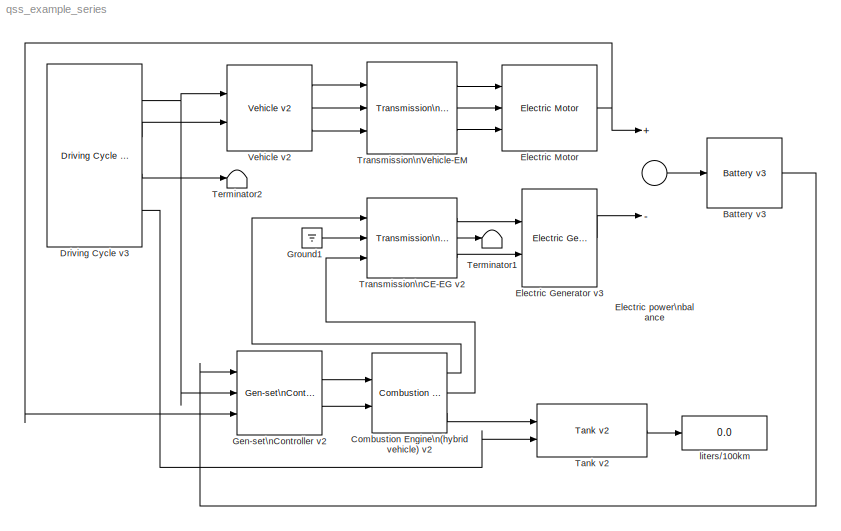
MODEL qss_example_series
KIND model
CONFIG InitFcn = \n
BLOCK [Reference] Battery v3  REF=qss_tb_library_aalto/Energy Buffer/Battery v3  (lib defined in mdl_0a709b6458aa)
  Ports = [1, 1]
  SID = 785
  SourceBlock = qss_tb_library_aalto/Energy Buffer/Battery v3
  SourceType = Battery
  Tag = battery
  cell_parallel_BT = 1
  cell_series_BT = 70
  init_file_BT = 'init_Saft_BT'
  init_soc_BT = 0.7
BLOCK [Reference] Combustion Engine\n(hybrid vehicle) v2  REF=qss_tb_library_aalto/Energy Converter/Combustion Engine\n(hybrid vehicle) v2  (lib defined in mdl_0a709b6458aa)
  ENABLE_FUEL_CUTOFF = on
  P_CE_cutoff = 0
  P_CE_idle = 0
  P_aux = 0
  Ports = [2, 3]
  SID = 790
  SourceBlock = qss_tb_library_aalto/Energy Converter/Combustion Engine\n(hybrid vehicle) v2
  SourceType = Combustion Engine (based on consumption map)
  T_CE_cutoff = 0
  Tag = combustion engine
  V_d = 1.5
  engine_type = Otto
  theta_CE = 0.16
  w_CE_idle = 105
BLOCK [Reference] Driving Cycle v3  REF=qss_tb_library_aalto/Driving Cycle/Driving Cycle v3  (lib defined in mdl_0a709b6458aa)
  Ports = [0, 4]
  SID = 791
  SourceBlock = qss_tb_library_aalto/Driving Cycle/Driving Cycle v3
  SourceType = Driving Cycle
  Tag = cycle
  autostop = on
  cyclenr = Europe: NEDC
  stepsize = 1
BLOCK [Reference] Electric Generator v3  REF=qss_tb_library_aalto/Energy Converter/Electric Generator v3  (lib defined in mdl_0a709b6458aa)
  Ports = [2, 1]
  SID = 787
  SourceBlock = qss_tb_library_aalto/Energy Converter/Electric Generator v3
  SourceType = Electric Generator
  init_file_name = 'init_EG_UQM'
BLOCK [Reference] Electric Motor  REF=qss_tb_library_aalto/Energy Converter/Electric Motor  (lib defined in mdl_0a709b6458aa)
  P_aux = 300
  Ports = [3, 1]
  SID = 443
  SourceBlock = qss_tb_library_aalto/Energy Converter/Electric Motor
  SourceType = Electric Motor
  scale_EM = 3.5
  theta_EM = 0.1
BLOCK [Sum] Electric power\nbalance
  InputSameDT = off
  Inputs = +-
  OutDataTypeStr = Inherit: Inherit via internal rule
  Ports = [2, 1]
  SID = 8
  SaturateOnIntegerOverflow = off
BLOCK [Reference] Gen-set\nController v2  REF=qss_tb_library_aalto/Controller/Gen-set\nController v2  (lib defined in mdl_0a709b6458aa)
  Ports = [3, 2]
  SID = 789
  SourceBlock = qss_tb_library_aalto/Controller/Gen-set\nController v2
  SourceType = Engine-Generator Controller
BLOCK [Ground] Ground1
  SID = 17
BLOCK [Reference] Tank v2  REF=qss_tb_library_aalto/Energy Source/Tank v2  (lib defined in mdl_0a709b6458aa)
  Ports = [2, 1]
  SID = 449
  SourceBlock = qss_tb_library_aalto/Energy Source/Tank v2
  SourceType = Tank
  Tag = tank
  flag_cold_start = off
BLOCK [Terminator] Terminator1
  SID = 12
BLOCK [Terminator] Terminator2
  SID = 13
BLOCK [Reference] Transmission\nCE-EG v2  REF=qss_tb_library_aalto/Gear System/Transmission\nCE-EG v2  (lib defined in mdl_0a709b6458aa)
  P_GT0 = 200
  Ports = [3, 3]
  SID = 788
  SourceBlock = qss_tb_library_aalto/Gear System/Transmission\nCE-EG v2
  SourceType = Transmission
  Tag = simple transmission
  e_GT = 0.98
  gear_ratio = 1.6
  w_wheel_min = 0
BLOCK [Reference] Transmission\nVehicle-EM  REF=qss_tb_library_aalto/Gear System/Transmission\nVehicle-EM  (lib defined in mdl_0a709b6458aa)
  P_GT0 = 300
  Ports = [3, 3]
  SID = 442
  SourceBlock = qss_tb_library_aalto/Gear System/Transmission\nVehicle-EM
  SourceType = Transmission
  Tag = simple transmission
  e_GT = 0.98
  gear_ratio = 3.5
  w_wheel_min = 1
BLOCK [Reference] Vehicle v2  REF=qss_tb_library_aalto/Vehicle/Vehicle v2  (lib defined in mdl_0a709b6458aa)
  A_f = 2.0
  Ports = [2, 3]
  SID = 441
  SourceBlock = qss_tb_library_aalto/Vehicle/Vehicle v2
  SourceType = Vehicle
  Tag = vehicle
  cw = 0.33
  d_wheel = 0.6
  m_f = 1200
  mt2m_f = 5
  mu = 0.01
BLOCK [Display] liters//100km
  Decimation = 1
  Ports = [1]
  SID = 450
LINE Battery v3:1 -> Gen-set\nController v2:1
LINE Combustion Engine\n(hybrid vehicle) v2:1 -> Transmission\nCE-EG v2:1
LINE Combustion Engine\n(hybrid vehicle) v2:2 -> Transmission\nCE-EG v2:3
LINE Combustion Engine\n(hybrid vehicle) v2:3 -> Tank v2:1
NET Driving Cycle v3:1 -> Gen-set\nController v2:2, Vehicle v2:1
LINE Driving Cycle v3:2 -> Vehicle v2:2
LINE Driving Cycle v3:3 -> Terminator2:1
LINE Driving Cycle v3:4 -> Tank v2:2
LINE Electric Generator v3:1 -> Electric power\nbalance:2
NET Electric Motor:1 -> Electric power\nbalance:1, Gen-set\nController v2:3
LINE Electric power\nbalance:1 -> Battery v3:1
LINE Gen-set\nController v2:1 -> Combustion Engine\n(hybrid vehicle) v2:1
LINE Gen-set\nController v2:2 -> Combustion Engine\n(hybrid vehicle) v2:2
LINE Ground1:1 -> Transmission\nCE-EG v2:2
LINE Tank v2:1 -> liters//100km:1
LINE Transmission\nCE-EG v2:1 -> Electric Generator v3:1
LINE Transmission\nCE-EG v2:2 -> Terminator1:1
LINE Transmission\nCE-EG v2:3 -> Electric Generator v3:2
LINE Transmission\nVehicle-EM:1 -> Electric Motor:1
LINE Transmission\nVehicle-EM:2 -> Electric Motor:2
LINE Transmission\nVehicle-EM:3 -> Electric Motor:3
LINE Vehicle v2:1 -> Transmission\nVehicle-EM:1
LINE Vehicle v2:2 -> Transmission\nVehicle-EM:2
LINE Vehicle v2:3 -> Transmission\nVehicle-EM:3
note: NET lines group one-source signal fan-out (src -> all destinations, sorted); 1:1 wires keep LINE
